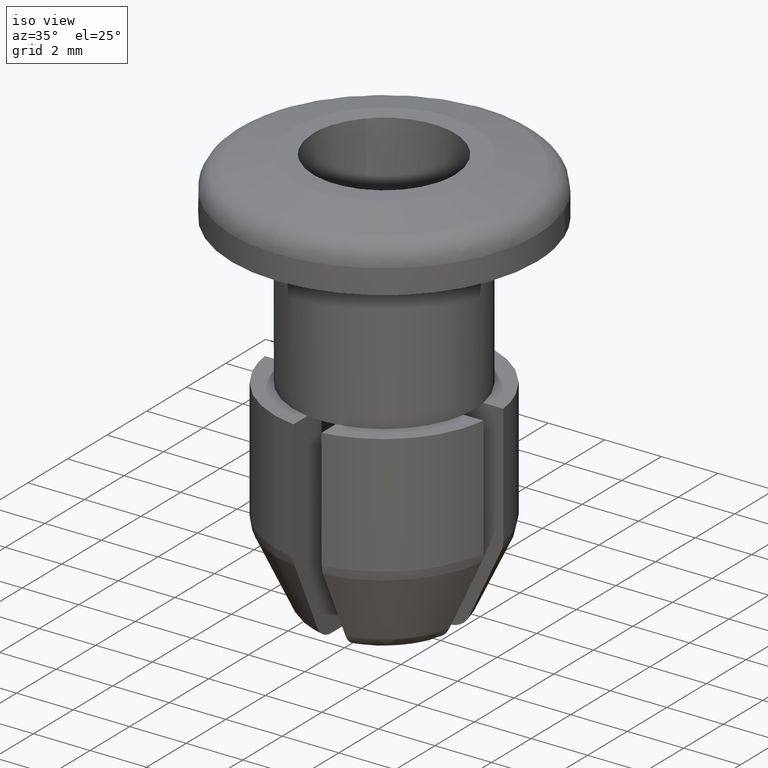
[diagram: clean part render]
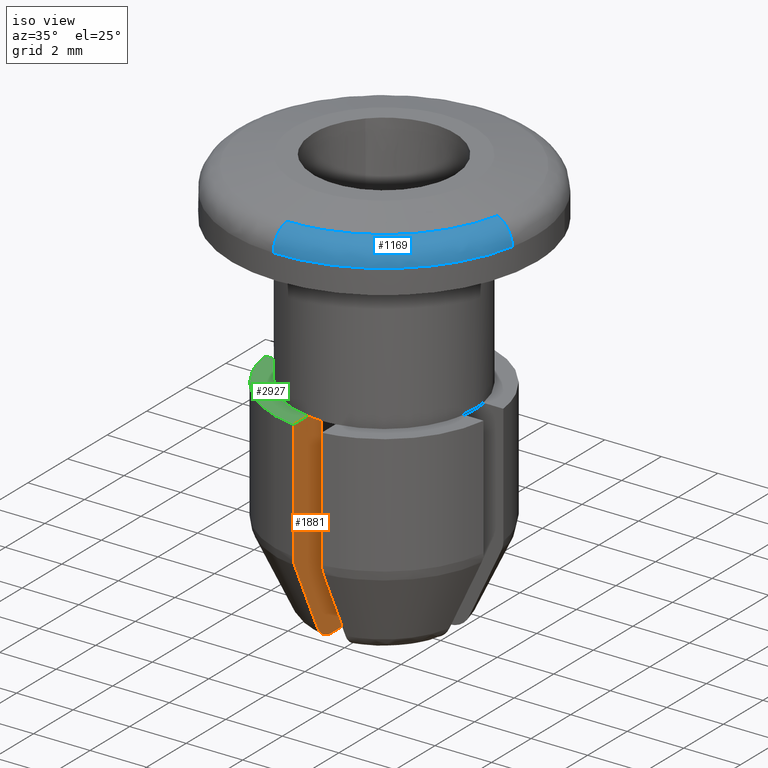
[diagram: same view with three faces highlighted in distinct colors, each labeled with its STEP entity id]
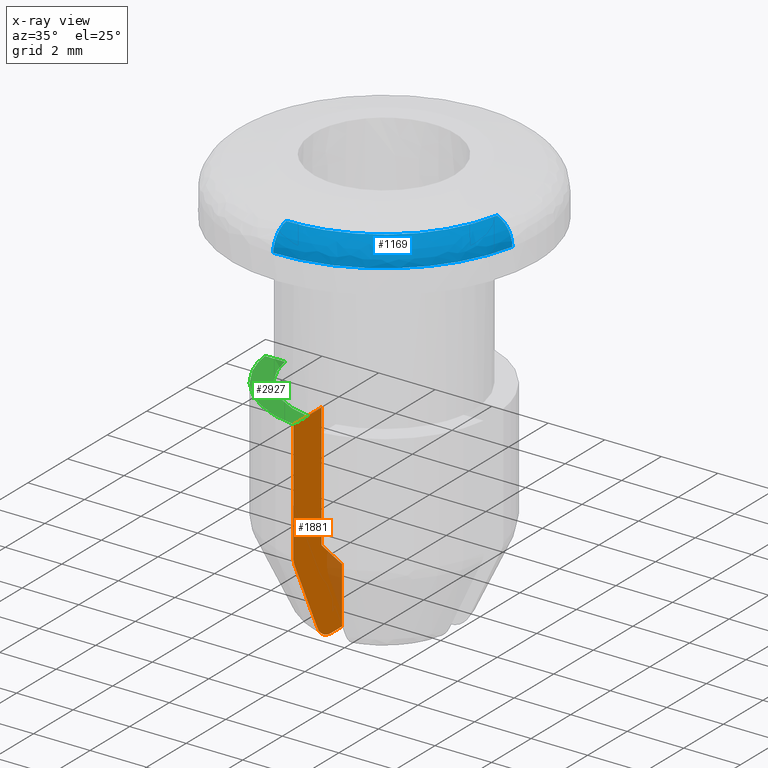
[diagram: x-ray of the same camera — body ghosted, the three highlighted faces saturated]
A machine part, iso view with three faces highlighted in distinct colors.
The next image is the same camera in x-ray (body ghosted, the three faces saturated) — at least one of them is partly hidden behind the body in this view.
Their STEP definitions:

[orange] entity #1881 — the highlighted face is a freeform B-spline surface patch.
#524=CARTESIAN_POINT('',(-0.500000000000000,-3.160696125855820,-7.299999999999860));
#525=VERTEX_POINT('',#524);
#770=CARTESIAN_POINT('',(-0.500000000000000,-2.449489742783180,-11.700363376784519));
#771=VERTEX_POINT('',#770);
#945=CARTESIAN_POINT('',(-0.500000000000000,-2.449489742783180,-7.299999999999860));
#946=VERTEX_POINT('',#945);
#960=CARTESIAN_POINT('',(-0.500000000000000,-2.449489742783180,-11.700363376784519));
#961=CARTESIAN_POINT('',(-0.500000000000000,-2.449489742783180,-7.299999999999860));
#962=QUASI_UNIFORM_CURVE('',1,(#960,#961),.UNSPECIFIED.,.F.,.U.);
#963=EDGE_CURVE('',#771,#946,#962,.T.);
#1775=CARTESIAN_POINT('',(-0.500000000000000,-3.160696125855820,-7.299999999999860));
#1776=CARTESIAN_POINT('',(-0.500000000000000,-2.449489742783180,-7.299999999999860));
#1777=QUASI_UNIFORM_CURVE('',1,(#1775,#1776),.UNSPECIFIED.,.F.,.U.);
#1778=EDGE_CURVE('',#525,#946,#1777,.T.);
#1790=CARTESIAN_POINT('',(-0.500000000000000,-3.990373423327025,-6.930355237749236));
#1791=CARTESIAN_POINT('',(-0.500000000000000,-3.990373423327025,-15.069945159233651));
#1792=CARTESIAN_POINT('',(-0.500000000000000,-1.291656060209104,-6.930355237749236));
#1793=CARTESIAN_POINT('',(-0.500000000000000,-1.291656060209104,-15.069945159233651));
#1794=B_SPLINE_SURFACE_WITH_KNOTS('',1,1,((#1790,#1792),(#1791,#1793)),.UNSPECIFIED.,.F.,.F.,.U.,(2,2),(2,2),(0.0,8.139589921484415),(0.0,2.698717363117922),.UNSPECIFIED.);
#1795=CARTESIAN_POINT('',(-0.500000000000000,-3.867815921162735,-7.299999999999900));
#1796=VERTEX_POINT('',#1795);
#1797=CARTESIAN_POINT('',(-0.500000000000000,-3.867815921163035,-11.533899999999999));
#1798=VERTEX_POINT('',#1797);
#1799=CARTESIAN_POINT('',(-0.500000000000000,-3.867815921162735,-7.299999999999900));
#1800=CARTESIAN_POINT('',(-0.500000000000000,-3.867815921163035,-11.533899999999999));
#1801=QUASI_UNIFORM_CURVE('',1,(#1799,#1800),.UNSPECIFIED.,.F.,.U.);
#1802=EDGE_CURVE('',#1796,#1798,#1801,.T.);
#1803=ORIENTED_EDGE('',*,*,#1802,.T.);
#1804=CARTESIAN_POINT('',(-0.500000000000000,-3.796920079485480,-11.850999999999880));
#1805=VERTEX_POINT('',#1804);
#1806=CARTESIAN_POINT('',(-0.500000000000000,-3.867815921163035,-11.533899999999999));
#1807=CARTESIAN_POINT('',(-0.500000000000000,-3.867824330917315,-11.561070521348620));
#1808=CARTESIAN_POINT('',(-0.500000000000000,-3.866329826807335,-11.588503881526851));
#1809=CARTESIAN_POINT('',(-0.500000000000000,-3.860315356414894,-11.642950231535471));
#1810=CARTESIAN_POINT('',(-0.500000000000000,-3.855820414153556,-11.669894690583959));
#1811=CARTESIAN_POINT('',(-0.500000000000000,-3.843876930884413,-11.723230263794040));
#1812=CARTESIAN_POINT('',(-0.500000000000000,-3.836378035212876,-11.749748093029799));
#1813=CARTESIAN_POINT('',(-0.500000000000000,-3.818659995197178,-11.801365579753060));
#1814=CARTESIAN_POINT('',(-0.500000000000000,-3.808448976203916,-11.826507692898639));
#1815=CARTESIAN_POINT('',(-0.500000000000000,-3.796920079485481,-11.850999999999880));
#1816=B_SPLINE_CURVE_WITH_KNOTS('',3,(#1806,#1807,#1808,#1809,#1810,#1811,#1812,#1813,#1814,#1815),.UNSPECIFIED.,.F.,.U.,(4,2,2,2,4),(0.0,0.250000000000000,0.500000000000000,0.750000000000000,1.0),.UNSPECIFIED.);
#1817=EDGE_CURVE('',#1798,#1805,#1816,.T.);
#1818=ORIENTED_EDGE('',*,*,#1817,.T.);
#1819=CARTESIAN_POINT('',(-0.500000000000000,-2.659426441460455,-14.258784187287681));
#1820=VERTEX_POINT('',#1819);
#1821=CARTESIAN_POINT('',(-0.500000000000000,-3.796920079485480,-11.850999999999880));
#1822=CARTESIAN_POINT('',(-0.500000000000000,-3.507637890788905,-12.465541227041420));
#1823=CARTESIAN_POINT('',(-0.500000000000000,-3.217934836621791,-13.079884380166090));
#1824=CARTESIAN_POINT('',(-0.500000000000000,-2.838091228185950,-13.882158835009999));
#1825=CARTESIAN_POINT('',(-0.500000000000000,-2.748823687846236,-14.070502242906169));
#1826=CARTESIAN_POINT('',(-0.500000000000000,-2.659426441460455,-14.258784187287681));
#1827=B_SPLINE_CURVE_WITH_KNOTS('',3,(#1821,#1822,#1823,#1824,#1825,#1826),.UNSPECIFIED.,.F.,.U.,(4,2,4),(0.0,0.124999999999997,0.163357270139191),.UNSPECIFIED.);
#1828=EDGE_CURVE('',#1805,#1820,#1827,.T.);
#1829=ORIENTED_EDGE('',*,*,#1828,.T.);
#1830=CARTESIAN_POINT('',(-0.500000000000000,-1.959617758645795,-14.700300000000000));
#1831=VERTEX_POINT('',#1830);
#1832=CARTESIAN_POINT('',(-0.500000000000000,-2.659426441460498,-14.258784187287709));
#1833=CARTESIAN_POINT('',(-0.500000000000000,-2.628831651957842,-14.325416781171210));
#1834=CARTESIAN_POINT('',(-0.500000000000000,-2.589246406175961,-14.386146364458479));
#1835=CARTESIAN_POINT('',(-0.500000000000000,-2.516594319444744,-14.468525069414270));
#1836=CARTESIAN_POINT('',(-0.500000000000000,-2.490296760257221,-14.494275634035169));
#1837=CARTESIAN_POINT('',(-0.500000000000000,-2.434426642107023,-14.541561799961020));
#1838=CARTESIAN_POINT('',(-0.500000000000000,-2.404587462135821,-14.563294505338201));
#1839=CARTESIAN_POINT('',(-0.500000000000000,-2.342880331600548,-14.601822240974251));
#1840=CARTESIAN_POINT('',(-0.500000000000000,-2.310871967761876,-14.618763512665570));
#1841=CARTESIAN_POINT('',(-0.500000000000000,-2.244594534724286,-14.648099197708570));
#1842=CARTESIAN_POINT('',(-0.500000000000000,-2.210162956632332,-14.660538220670000));
#1843=CARTESIAN_POINT('',(-0.500000000000000,-2.104425865831060,-14.690477880537021));
#1844=CARTESIAN_POINT('',(-0.500000000000000,-2.032645997564825,-14.700300000000000));
#1845=CARTESIAN_POINT('',(-0.500000000000000,-1.959617758645796,-14.700300000000000));
#1846=B_SPLINE_CURVE_WITH_KNOTS('',3,(#1832,#1833,#1834,#1835,#1836,#1837,#1838,#1839,#1840,#1841,#1842,#1843,#1844,#1845),.UNSPECIFIED.,.F.,.U.,(4,2,2,2,2,2,4),(0.0,0.250000000000001,0.375000000000001,0.500000000000001,0.625000000000001,0.750000000000001,1.0),.UNSPECIFIED.);
#1847=EDGE_CURVE('',#1820,#1831,#1846,.T.);
#1848=ORIENTED_EDGE('',*,*,#1847,.T.);
#1849=CARTESIAN_POINT('',(-0.500000000000000,-1.414213562373094,-14.700300000000000));
#1850=VERTEX_POINT('',#1849);
#1851=CARTESIAN_POINT('',(-0.500000000000000,-1.959617758645795,-14.700300000000000));
#1852=CARTESIAN_POINT('',(-0.500000000000000,-1.414213562373094,-14.700300000000000));
#1853=QUASI_UNIFORM_CURVE('',1,(#1851,#1852),.UNSPECIFIED.,.F.,.U.);
#1854=EDGE_CURVE('',#1831,#1850,#1853,.T.);
#1855=ORIENTED_EDGE('',*,*,#1854,.T.);
#1856=CARTESIAN_POINT('',(-0.500000000000000,-1.414213562373094,-12.700363376784519));
#1857=VERTEX_POINT('',#1856);
#1858=CARTESIAN_POINT('',(-0.500000000000000,-1.414213562373094,-12.700363376784519));
#1859=CARTESIAN_POINT('',(-0.500000000000000,-1.414213562373094,-14.700300000000000));
#1860=QUASI_UNIFORM_CURVE('',1,(#1858,#1859),.UNSPECIFIED.,.F.,.U.);
#1861=EDGE_CURVE('',#1857,#1850,#1860,.T.);
#1862=ORIENTED_EDGE('',*,*,#1861,.F.);
#1863=CARTESIAN_POINT('',(-0.500000000000000,-2.449489742783180,-11.700363376784519));
#1864=CARTESIAN_POINT('',(-0.500000000000000,-2.259192571205580,-11.886809601036830));
#1865=CARTESIAN_POINT('',(-0.500000000000000,-2.068499664649262,-12.072850518576731));
#1866=CARTESIAN_POINT('',(-0.500000000000000,-1.723467035865741,-12.406244720743150));
#1867=CARTESIAN_POINT('',(-0.500000000000000,-1.569523173668907,-12.554003440158411));
#1868=CARTESIAN_POINT('',(-0.500000000000000,-1.414213562373094,-12.700363376784519));
#1869=B_SPLINE_CURVE_WITH_KNOTS('',3,(#1863,#1864,#1865,#1866,#1867,#1868),.UNSPECIFIED.,.F.,.U.,(4,2,4),(0.0,0.125000000000002,0.225114440443609),.UNSPECIFIED.);
#1870=EDGE_CURVE('',#771,#1857,#1869,.T.);
#1871=ORIENTED_EDGE('',*,*,#1870,.F.);
#1872=ORIENTED_EDGE('',*,*,#963,.T.);
#1873=ORIENTED_EDGE('',*,*,#1778,.F.);
#1874=CARTESIAN_POINT('',(-0.500000000000000,-3.867815921162735,-7.299999999999900));
#1875=CARTESIAN_POINT('',(-0.500000000000000,-3.160696125855820,-7.299999999999860));
#1876=QUASI_UNIFORM_CURVE('',1,(#1874,#1875),.UNSPECIFIED.,.F.,.U.);
#1877=EDGE_CURVE('',#1796,#525,#1876,.T.);
#1878=ORIENTED_EDGE('',*,*,#1877,.F.);
#1879=EDGE_LOOP('',(#1803,#1818,#1829,#1848,#1855,#1862,#1871,#1872,#1873,#1878));
#1880=FACE_OUTER_BOUND('',#1879,.T.);
#1881=ADVANCED_FACE('',(#1880),#1794,.T.);

[blue] entity #1169 — the highlighted face is a freeform B-spline surface patch.
#109=CARTESIAN_POINT('',(5.291217282874270,-1.078433894781046,-1.138999999982367));
#110=VERTEX_POINT('',#109);
#124=CARTESIAN_POINT('',(-0.138363639713577,-5.398227070363491,-1.138999999982689));
#125=VERTEX_POINT('',#124);
#126=CARTESIAN_POINT('',(5.291217282874270,-1.078433894781046,-1.138999999982368));
#127=CARTESIAN_POINT('',(4.410413657307039,-5.400000000000000,-1.139000000000000));
#128=CARTESIAN_POINT('',(0.0,-5.400000000000000,-1.139000000000000));
#129=CARTESIAN_POINT('',(-0.069193178619844,-5.400000000000000,-1.139000000000000));
#130=CARTESIAN_POINT('',(-0.138363639713577,-5.398227070363491,-1.138999999982689));
#138=(BOUNDED_CURVE()B_SPLINE_CURVE(2,(#126,#127,#128,#129,#130),.UNSPECIFIED.,.F.,.U.)B_SPLINE_CURVE_WITH_KNOTS((3,2,3),(0.534232961491207,0.750000000000000,0.754506356911954),.UNSPECIFIED.)CURVE()GEOMETRIC_REPRESENTATION_ITEM()RATIONAL_B_SPLINE_CURVE((0.930770871026973,0.747213190309254,1.0,0.994720474475742,0.989631280362189))REPRESENTATION_ITEM(''));
#139=EDGE_CURVE('',#110,#125,#138,.T.);
#379=CARTESIAN_POINT('',(-0.122093203293687,-4.763439558820435,-0.356201381019195));
#380=VERTEX_POINT('',#379);
#394=CARTESIAN_POINT('',(4.669013250326508,-0.951618857308044,-0.356201381029874));
#395=VERTEX_POINT('',#394);
#396=CARTESIAN_POINT('',(4.669013250326508,-0.951618857308044,-0.356201381029874));
#397=CARTESIAN_POINT('',(3.891784952790702,-4.765004006035629,-0.356201380946417));
#398=CARTESIAN_POINT('',(0.0,-4.765004006035630,-0.356201380946417));
#399=CARTESIAN_POINT('',(-0.061056624727273,-4.765004006035631,-0.356201380946417));
#400=CARTESIAN_POINT('',(-0.122093203293687,-4.763439558820435,-0.356201381019195));
#408=(BOUNDED_CURVE()B_SPLINE_CURVE(2,(#396,#397,#398,#399,#400),.UNSPECIFIED.,.F.,.U.)B_SPLINE_CURVE_WITH_KNOTS((3,2,3),(0.534232961493298,0.750000000000000,0.754506356914855),.UNSPECIFIED.)CURVE()GEOMETRIC_REPRESENTATION_ITEM()RATIONAL_B_SPLINE_CURVE((0.930770871023416,0.747213190311703,1.0,0.994720474472343,0.989631280355636))REPRESENTATION_ITEM(''));
#409=EDGE_CURVE('',#395,#380,#408,.T.);
#1108=CARTESIAN_POINT('',(-0.122093203293687,-4.763439558820436,-0.356201381019195));
#1109=CARTESIAN_POINT('',(-0.138363639712127,-5.398227070335432,-0.490050471534624));
#1110=CARTESIAN_POINT('',(-0.138363639713577,-5.398227070363491,-1.138999999982689));
#1118=(BOUNDED_CURVE()B_SPLINE_CURVE(2,(#1108,#1109,#1110),.UNSPECIFIED.,.F.,.U.)B_SPLINE_CURVE_WITH_KNOTS((3,3),(-1.699726075810754,-0.306776979257067),.UNSPECIFIED.)CURVE()GEOMETRIC_REPRESENTATION_ITEM()RATIONAL_B_SPLINE_CURVE((0.839576020574185,0.651345877337695,0.837826663176760))REPRESENTATION_ITEM(''));
#1119=EDGE_CURVE('',#380,#125,#1118,.T.);
#1126=CARTESIAN_POINT('',(4.669013250326509,-0.951618857308044,-0.356201381029874));
#1127=CARTESIAN_POINT('',(5.291217282846900,-1.078433894772084,-0.490050471620362));
#1128=CARTESIAN_POINT('',(5.291217282874270,-1.078433894781046,-1.138999999982367));
#1136=(BOUNDED_CURVE()B_SPLINE_CURVE(2,(#1126,#1127,#1128),.UNSPECIFIED.,.F.,.U.)B_SPLINE_CURVE_WITH_KNOTS((3,3),(-1.699726075667499,-0.306776979257956),.UNSPECIFIED.)CURVE()GEOMETRIC_REPRESENTATION_ITEM()RATIONAL_B_SPLINE_CURVE((0.894935903372092,0.694294259129026,0.893071197055979))REPRESENTATION_ITEM(''));
#1137=EDGE_CURVE('',#395,#110,#1136,.T.);
#1146=CARTESIAN_POINT('',(4.621058432483168,-0.941844905796585,-0.347463952188169));
#1147=CARTESIAN_POINT('',(3.831481340201630,-4.815818059898002,-0.347463952188169));
#1148=CARTESIAN_POINT('',(-0.120839200104954,-4.714514900890311,-0.347463952188169));
#1149=CARTESIAN_POINT('',(5.334587415156090,-1.087273414716691,-0.454240020294953));
#1150=CARTESIAN_POINT('',(4.423093202018159,-5.559419512080985,-0.454240020294953));
#1151=CARTESIAN_POINT('',(-0.139497754801386,-5.442474321914326,-0.454240020294953));
#1152=CARTESIAN_POINT('',(5.289697134566309,-1.078124064473452,-1.188797942544805));
#1153=CARTESIAN_POINT('',(4.385873098669729,-5.512637280880764,-1.188797942544805));
#1154=CARTESIAN_POINT('',(-0.138323888320750,-5.396676178515401,-1.188797942544805));
#1162=(BOUNDED_SURFACE()B_SPLINE_SURFACE(2,2,((#1146,#1149,#1152),(#1147,#1150,#1153),(#1148,#1151,#1154)),.UNSPECIFIED.,.F.,.F.,.U.)B_SPLINE_SURFACE_WITH_KNOTS((3,3),(3,3),(0.0,7.851710577335104),(0.0,1.248061126681803),.UNSPECIFIED.)GEOMETRIC_REPRESENTATION_ITEM()RATIONAL_B_SPLINE_SURFACE(((0.915976644025005,0.673346692491071,0.913925590212445),(0.679887298113749,0.499794253966901,0.678364895283935),(0.859315201006303,0.631694107245270,0.857391023429603)))REPRESENTATION_ITEM('')SURFACE());
#1163=ORIENTED_EDGE('',*,*,#139,.F.);
#1164=ORIENTED_EDGE('',*,*,#1137,.F.);
#1165=ORIENTED_EDGE('',*,*,#409,.T.);
#1166=ORIENTED_EDGE('',*,*,#1119,.T.);
#1167=EDGE_LOOP('',(#1163,#1164,#1165,#1166));
#1168=FACE_OUTER_BOUND('',#1167,.T.);
#1169=ADVANCED_FACE('',(#1168),#1162,.T.);

[green] entity #2927 — the highlighted face is a freeform B-spline surface patch.
#517=CARTESIAN_POINT('',(-2.321609362806782,-2.202301061736991,-7.299999999999860));
#518=VERTEX_POINT('',#517);
#524=CARTESIAN_POINT('',(-0.500000000000000,-3.160696125855820,-7.299999999999860));
#525=VERTEX_POINT('',#524);
#526=CARTESIAN_POINT('',(-2.321609362806783,-2.202301061736991,-7.299999999999860));
#527=CARTESIAN_POINT('',(-1.573570166425779,-2.990864841278426,-7.299999999999861));
#528=CARTESIAN_POINT('',(-0.500000000000000,-3.160696125855822,-7.299999999999860));
#536=(BOUNDED_CURVE()B_SPLINE_CURVE(2,(#526,#527,#528),.UNSPECIFIED.,.F.,.U.)B_SPLINE_CURVE_WITH_KNOTS((3,3),(0.479718158413587,1.0),.UNSPECIFIED.)CURVE()GEOMETRIC_REPRESENTATION_ITEM()RATIONAL_B_SPLINE_CURVE((0.904610815485653,0.900577888452465,1.0))REPRESENTATION_ITEM(''));
#537=EDGE_CURVE('',#518,#525,#536,.T.);
#712=CARTESIAN_POINT('',(-3.160696125855820,-0.500000000000000,-7.299999999999860));
#713=VERTEX_POINT('',#712);
#727=CARTESIAN_POINT('',(-3.160696125855822,-0.500000000000000,-7.299999999999860));
#728=CARTESIAN_POINT('',(-3.005442006511322,-1.481422187070637,-7.299999999999861));
#729=CARTESIAN_POINT('',(-2.321609362806783,-2.202301061736991,-7.299999999999860));
#737=(BOUNDED_CURVE()B_SPLINE_CURVE(2,(#727,#728,#729),.UNSPECIFIED.,.F.,.U.)B_SPLINE_CURVE_WITH_KNOTS((3,3),(0.0,0.479718158413587),.UNSPECIFIED.)CURVE()GEOMETRIC_REPRESENTATION_ITEM()RATIONAL_B_SPLINE_CURVE((1.0,0.908329316065027,0.904610815485653))REPRESENTATION_ITEM(''));
#738=EDGE_CURVE('',#713,#518,#737,.T.);
#1289=CARTESIAN_POINT('',(-3.867815921162735,-0.500000000000000,-7.299999999999900));
#1290=VERTEX_POINT('',#1289);
#1296=CARTESIAN_POINT('',(-3.160696125855820,-0.500000000000000,-7.299999999999860));
#1297=CARTESIAN_POINT('',(-3.867815921162735,-0.500000000000000,-7.299999999999900));
#1298=QUASI_UNIFORM_CURVE('',1,(#1296,#1297),.UNSPECIFIED.,.F.,.U.);
#1299=EDGE_CURVE('',#713,#1290,#1298,.T.);
#1795=CARTESIAN_POINT('',(-0.500000000000000,-3.867815921162735,-7.299999999999900));
#1796=VERTEX_POINT('',#1795);
#1874=CARTESIAN_POINT('',(-0.500000000000000,-3.867815921162735,-7.299999999999900));
#1875=CARTESIAN_POINT('',(-0.500000000000000,-3.160696125855820,-7.299999999999860));
#1876=QUASI_UNIFORM_CURVE('',1,(#1874,#1875),.UNSPECIFIED.,.F.,.U.);
#1877=EDGE_CURVE('',#1796,#525,#1876,.T.);
#2862=CARTESIAN_POINT('',(-0.500000000000001,-3.867815921162743,-7.299999999999900));
#2863=CARTESIAN_POINT('',(-3.482289609849442,-3.482289609849445,-7.299999999999899));
#2864=CARTESIAN_POINT('',(-3.867815921162743,-0.500000000000003,-7.299999999999900));
#2872=(BOUNDED_CURVE()B_SPLINE_CURVE(2,(#2862,#2863,#2864),.UNSPECIFIED.,.F.,.U.)CURVE()GEOMETRIC_REPRESENTATION_ITEM()QUASI_UNIFORM_CURVE()RATIONAL_B_SPLINE_CURVE((1.0,0.791926219699678,1.0))REPRESENTATION_ITEM(''));
#2873=EDGE_CURVE('',#1796,#1290,#2872,.T.);
#2915=CARTESIAN_POINT('',(-0.331777601265403,-4.036038383126625,-7.299999999999900));
#2916=CARTESIAN_POINT('',(-4.036038410229195,-4.036038383126625,-7.299999999999900));
#2917=CARTESIAN_POINT('',(-0.331777601265403,-0.331777507925489,-7.299999999999900));
#2918=CARTESIAN_POINT('',(-4.036038410229195,-0.331777507925489,-7.299999999999900));
#2919=B_SPLINE_SURFACE_WITH_KNOTS('',1,1,((#2915,#2917),(#2916,#2918)),.UNSPECIFIED.,.F.,.F.,.U.,(2,2),(2,2),(0.0,3.704260808963792),(0.0,3.704260875201136),.UNSPECIFIED.);
#2920=ORIENTED_EDGE('',*,*,#1299,.T.);
#2921=ORIENTED_EDGE('',*,*,#2873,.F.);
#2922=ORIENTED_EDGE('',*,*,#1877,.T.);
#2923=ORIENTED_EDGE('',*,*,#537,.F.);
#2924=ORIENTED_EDGE('',*,*,#738,.F.);
#2925=EDGE_LOOP('',(#2920,#2921,#2922,#2923,#2924));
#2926=FACE_OUTER_BOUND('',#2925,.T.);
#2927=ADVANCED_FACE('',(#2926),#2919,.F.);